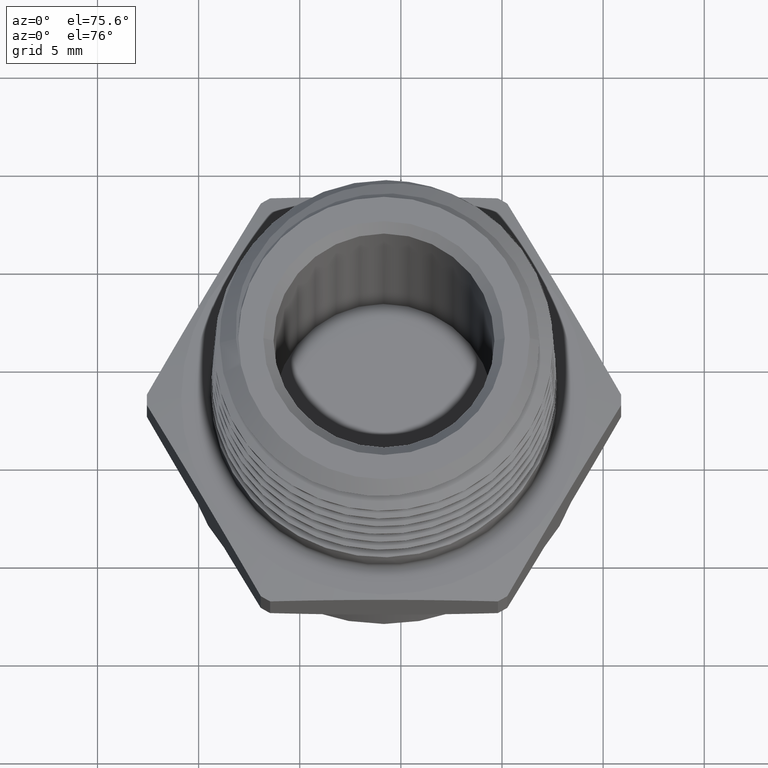
[diagram: clean part render]
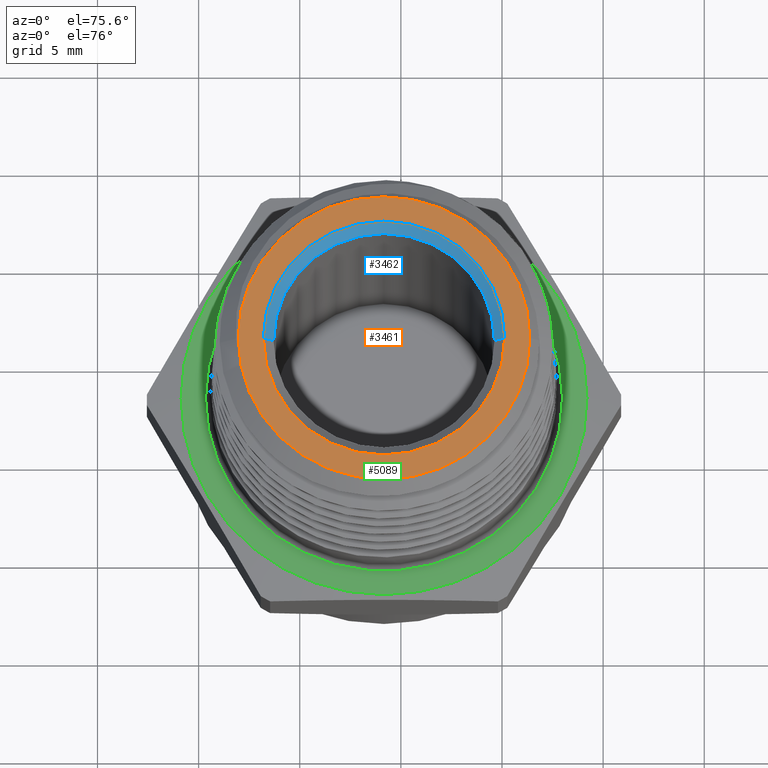
[diagram: same view with three faces highlighted in distinct colors, each labeled with its STEP entity id]
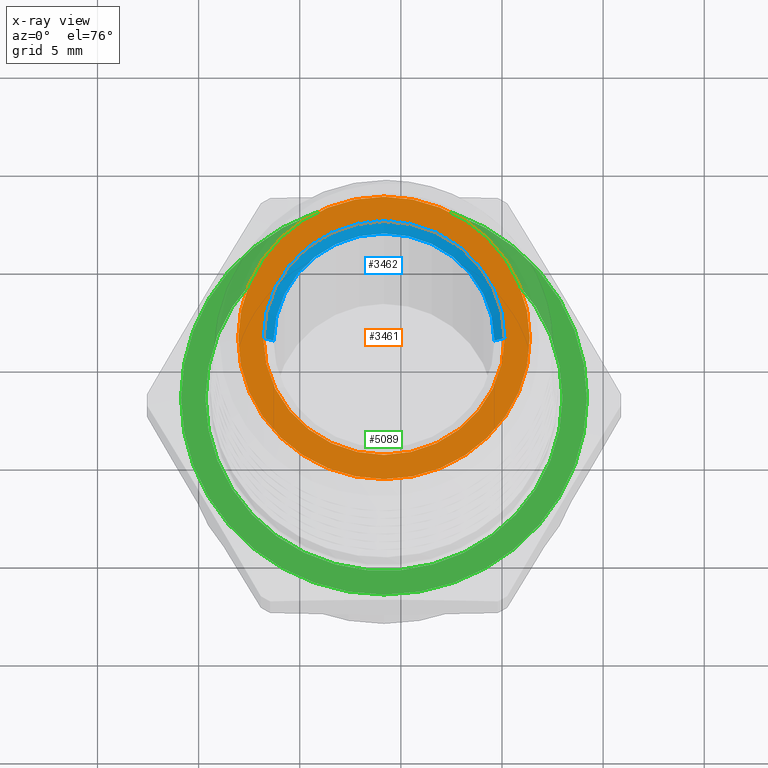
[diagram: x-ray of the same camera — body ghosted, the three highlighted faces saturated]
A machine part, auxiliary view with three faces highlighted in distinct colors.
The next image is the same camera in x-ray (body ghosted, the three faces saturated) — at least one of them is partly hidden behind the body in this view.
Their STEP definitions:

[orange] entity #3461 — the highlighted planar face has unit normal (0, 0, 1).
#38 = DIRECTION ( 'NONE',  ( 0.0000000000000000000, 0.0000000000000000000, 1.000000000000000000 ) ) ;
#39 = CARTESIAN_POINT ( 'NONE',  ( 0.0000000000000000000, 0.0000000000000000000, 0.5899999999999999700 ) ) ;
#41 = PLANE ( 'NONE',  #4016 ) ;
#43 = DIRECTION ( 'NONE',  ( 1.000000000000000000, 0.0000000000000000000, -0.0000000000000000000 ) ) ;
#59 = ORIENTED_EDGE ( 'NONE', *, *, #3976, .F. ) ;
#87 = EDGE_LOOP ( 'NONE', ( #137, #132 ) ) ;
#92 = EDGE_LOOP ( 'NONE', ( #131, #59 ) ) ;
#131 = ORIENTED_EDGE ( 'NONE', *, *, #3971, .F. ) ;
#132 = ORIENTED_EDGE ( 'NONE', *, *, #3926, .T. ) ;
#137 = ORIENTED_EDGE ( 'NONE', *, *, #4035, .T. ) ;
#1339 = CARTESIAN_POINT ( 'NONE',  ( 0.0000000000000000000, 0.0000000000000000000, 0.5899999999999999700 ) ) ;
#1340 = DIRECTION ( 'NONE',  ( -0.0000000000000000000, -0.0000000000000000000, -1.000000000000000000 ) ) ;
#1341 = DIRECTION ( 'NONE',  ( -1.000000000000000000, 0.0000000000000000000, 0.0000000000000000000 ) ) ;
#1393 = CARTESIAN_POINT ( 'NONE',  ( 0.0000000000000000000, 0.0000000000000000000, 0.5899999999999999700 ) ) ;
#1394 = DIRECTION ( 'NONE',  ( -0.0000000000000000000, -0.0000000000000000000, -1.000000000000000000 ) ) ;
#1395 = DIRECTION ( 'NONE',  ( -1.000000000000000000, 0.0000000000000000000, 0.0000000000000000000 ) ) ;
#1885 = CARTESIAN_POINT ( 'NONE',  ( -1.224646799147304700E-018, 0.0000000000000000000, 0.5899999999999999700 ) ) ;
#1886 = DIRECTION ( 'NONE',  ( 2.296162711943753400E-033, -0.0000000000000000000, -1.000000000000000000 ) ) ;
#1887 = DIRECTION ( 'NONE',  ( -1.000000000000000000, 0.0000000000000000000, 0.0000000000000000000 ) ) ;
#2847 = CARTESIAN_POINT ( 'NONE',  ( 0.2349999999999996000, 0.0000000000000000000, 0.5899999999999999700 ) ) ;
#2899 = CARTESIAN_POINT ( 'NONE',  ( 0.2838000000000001100, 3.697608685098229200E-017, 0.5899999999999999700 ) ) ;
#2900 = CARTESIAN_POINT ( 'NONE',  ( -0.2838000000000001100, 0.0000000000000000000, 0.5899999999999999700 ) ) ;
#2931 = CARTESIAN_POINT ( 'NONE',  ( -0.2349999999999996000, 2.877919977996274900E-017, 0.5899999999999999700 ) ) ;
#3461 = ADVANCED_FACE ( 'NONE', ( #4469, #4468 ), #41, .T. ) ;
#3517 = AXIS2_PLACEMENT_3D ( 'NONE', #4746, #4747, #4748 ) ;
#3539 = AXIS2_PLACEMENT_3D ( 'NONE', #1339, #1340, #1341 ) ;
#3540 = AXIS2_PLACEMENT_3D ( 'NONE', #1393, #1394, #1395 ) ;
#3546 = AXIS2_PLACEMENT_3D ( 'NONE', #1885, #1886, #1887 ) ;
#3926 = EDGE_CURVE ( 'NONE', #4441, #4402, #4529, .T. ) ;
#3971 = EDGE_CURVE ( 'NONE', #4410, #4409, #4584, .T. ) ;
#3976 = EDGE_CURVE ( 'NONE', #4409, #4410, #4589, .T. ) ;
#4016 = AXIS2_PLACEMENT_3D ( 'NONE', #39, #38, #43 ) ;
#4035 = EDGE_CURVE ( 'NONE', #4402, #4441, #4624, .T. ) ;
#4402 = VERTEX_POINT ( 'NONE', #2847 ) ;
#4409 = VERTEX_POINT ( 'NONE', #2899 ) ;
#4410 = VERTEX_POINT ( 'NONE', #2900 ) ;
#4441 = VERTEX_POINT ( 'NONE', #2931 ) ;
#4468 = FACE_OUTER_BOUND ( 'NONE', #92, .T. ) ;
#4469 = FACE_BOUND ( 'NONE', #87, .T. ) ;
#4529 = CIRCLE ( 'NONE', #3517, 0.2349999999999996000 ) ;
#4584 = CIRCLE ( 'NONE', #3539, 0.2838000000000001100 ) ;
#4589 = CIRCLE ( 'NONE', #3540, 0.2838000000000001100 ) ;
#4624 = CIRCLE ( 'NONE', #3546, 0.2349999999999996000 ) ;
#4746 = CARTESIAN_POINT ( 'NONE',  ( -1.224646799147304700E-018, 0.0000000000000000000, 0.5899999999999999700 ) ) ;
#4747 = DIRECTION ( 'NONE',  ( 2.296162711943753400E-033, -0.0000000000000000000, -1.000000000000000000 ) ) ;
#4748 = DIRECTION ( 'NONE',  ( -1.000000000000000000, 0.0000000000000000000, 0.0000000000000000000 ) ) ;

[blue] entity #3462 — the highlighted conical surface has half-angle 45 deg.
#40 = DIRECTION ( 'NONE',  ( -2.296162711943753400E-033, 0.0000000000000000000, 1.000000000000000000 ) ) ;
#42 = DIRECTION ( 'NONE',  ( 1.000000000000000000, 0.0000000000000000000, 0.0000000000000000000 ) ) ;
#44 = CARTESIAN_POINT ( 'NONE',  ( -1.224646799147304700E-018, 0.0000000000000000000, 0.5700000000000000600 ) ) ;
#58 = ORIENTED_EDGE ( 'NONE', *, *, #4032, .F. ) ;
#90 = EDGE_LOOP ( 'NONE', ( #58, #5197, #5271, #5192 ) ) ;
#1869 = DIRECTION ( 'NONE',  ( -0.7071067811865431300, 8.659560562354879900E-017, 0.7071067811865516800 ) ) ;
#1872 = CARTESIAN_POINT ( 'NONE',  ( -0.2149999999999999100, 2.632990618166808500E-017, 0.5700000000000000600 ) ) ;
#1878 = CARTESIAN_POINT ( 'NONE',  ( 0.2149999999999999100, 0.0000000000000000000, 0.5700000000000000600 ) ) ;
#1879 = DIRECTION ( 'NONE',  ( 0.7071067811865431300, 0.0000000000000000000, 0.7071067811865516800 ) ) ;
#2847 = CARTESIAN_POINT ( 'NONE',  ( 0.2349999999999996000, 0.0000000000000000000, 0.5899999999999999700 ) ) ;
#2895 = CARTESIAN_POINT ( 'NONE',  ( 0.2149999999999999100, 0.0000000000000000000, 0.5700000000000000600 ) ) ;
#2931 = CARTESIAN_POINT ( 'NONE',  ( -0.2349999999999996000, 2.877919977996274900E-017, 0.5899999999999999700 ) ) ;
#2932 = CARTESIAN_POINT ( 'NONE',  ( -0.2149999999999999100, 2.755455298081542000E-017, 0.5700000000000000600 ) ) ;
#3462 = ADVANCED_FACE ( 'NONE', ( #4470 ), #4479, .F. ) ;
#3517 = AXIS2_PLACEMENT_3D ( 'NONE', #4746, #4747, #4748 ) ;
#3518 = AXIS2_PLACEMENT_3D ( 'NONE', #4751, #4752, #4753 ) ;
#3926 = EDGE_CURVE ( 'NONE', #4441, #4402, #4529, .T. ) ;
#3927 = EDGE_CURVE ( 'NONE', #4442, #4404, #4533, .T. ) ;
#4015 = AXIS2_PLACEMENT_3D ( 'NONE', #44, #40, #42 ) ;
#4032 = EDGE_CURVE ( 'NONE', #4442, #4441, #4616, .T. ) ;
#4036 = EDGE_CURVE ( 'NONE', #4404, #4402, #4625, .T. ) ;
#4402 = VERTEX_POINT ( 'NONE', #2847 ) ;
#4404 = VERTEX_POINT ( 'NONE', #2895 ) ;
#4441 = VERTEX_POINT ( 'NONE', #2931 ) ;
#4442 = VERTEX_POINT ( 'NONE', #2932 ) ;
#4470 = FACE_OUTER_BOUND ( 'NONE', #90, .T. ) ;
#4479 = CONICAL_SURFACE ( 'NONE', #4015, 0.2149999999999999100, 0.7853981633974422800 ) ;
#4529 = CIRCLE ( 'NONE', #3517, 0.2349999999999996000 ) ;
#4533 = CIRCLE ( 'NONE', #3518, 0.2149999999999999100 ) ;
#4616 = LINE ( 'NONE', #1872, #4621 ) ;
#4621 = VECTOR ( 'NONE', #1869, 39.37007874015748900 ) ;
#4625 = LINE ( 'NONE', #1878, #4627 ) ;
#4627 = VECTOR ( 'NONE', #1879, 39.37007874015748900 ) ;
#4746 = CARTESIAN_POINT ( 'NONE',  ( -1.224646799147304700E-018, 0.0000000000000000000, 0.5899999999999999700 ) ) ;
#4747 = DIRECTION ( 'NONE',  ( 2.296162711943753400E-033, -0.0000000000000000000, -1.000000000000000000 ) ) ;
#4748 = DIRECTION ( 'NONE',  ( -1.000000000000000000, 0.0000000000000000000, 0.0000000000000000000 ) ) ;
#4751 = CARTESIAN_POINT ( 'NONE',  ( -1.224646799147304700E-018, 0.0000000000000000000, 0.5700000000000000600 ) ) ;
#4752 = DIRECTION ( 'NONE',  ( 2.296162711943753400E-033, -0.0000000000000000000, -1.000000000000000000 ) ) ;
#4753 = DIRECTION ( 'NONE',  ( -1.000000000000000000, 0.0000000000000000000, 0.0000000000000000000 ) ) ;
#5192 = ORIENTED_EDGE ( 'NONE', *, *, #3926, .F. ) ;
#5197 = ORIENTED_EDGE ( 'NONE', *, *, #3927, .T. ) ;
#5271 = ORIENTED_EDGE ( 'NONE', *, *, #4036, .T. ) ;

[green] entity #5089 — the highlighted planar face has unit normal (0, 0, 1).
#67 = EDGE_LOOP ( 'NONE', ( #4318, #4319 ) ) ;
#129 = EDGE_LOOP ( 'NONE', ( #4320, #4321 ) ) ;
#620 = CARTESIAN_POINT ( 'NONE',  ( 1.469576158976820900E-017, 0.0000000000000000000, 0.1199999999999999500 ) ) ;
#621 = DIRECTION ( 'NONE',  ( -1.224646799147351200E-016, -0.0000000000000000000, -1.000000000000000000 ) ) ;
#622 = DIRECTION ( 'NONE',  ( -1.000000000000000000, 0.0000000000000000000, 1.296763288131770500E-016 ) ) ;
#1099 = AXIS2_PLACEMENT_3D ( 'NONE', #2996, #2995, #3000 ) ;
#1898 = CARTESIAN_POINT ( 'NONE',  ( 0.0000000000000000000, 0.0000000000000000000, 0.1200000000000000000 ) ) ;
#1899 = DIRECTION ( 'NONE',  ( 0.0000000000000000000, -0.0000000000000000000, -1.000000000000000000 ) ) ;
#1900 = DIRECTION ( 'NONE',  ( 1.000000000000000000, 0.0000000000000000000, 0.0000000000000000000 ) ) ;
#2826 = CARTESIAN_POINT ( 'NONE',  ( 1.469576158976820900E-017, 0.0000000000000000000, 0.1199999999999999500 ) ) ;
#2827 = DIRECTION ( 'NONE',  ( -1.224646799147351200E-016, -0.0000000000000000000, -1.000000000000000000 ) ) ;
#2828 = DIRECTION ( 'NONE',  ( -1.000000000000000000, 0.0000000000000000000, 1.296763288131770500E-016 ) ) ;
#2831 = CARTESIAN_POINT ( 'NONE',  ( 0.0000000000000000000, 0.0000000000000000000, 0.1200000000000000000 ) ) ;
#2832 = DIRECTION ( 'NONE',  ( 0.0000000000000000000, -0.0000000000000000000, -1.000000000000000000 ) ) ;
#2833 = DIRECTION ( 'NONE',  ( 1.000000000000000000, 0.0000000000000000000, 0.0000000000000000000 ) ) ;
#2925 = CARTESIAN_POINT ( 'NONE',  ( 0.3950000000000000200, 4.837354856632045600E-017, 0.1199999999999999000 ) ) ;
#2939 = CARTESIAN_POINT ( 'NONE',  ( 0.3475000000000000300, 0.0000000000000000000, 0.1199999999999999800 ) ) ;
#2944 = CARTESIAN_POINT ( 'NONE',  ( -0.3475000000000000300, 4.255647627037053400E-017, 0.1199999999999999800 ) ) ;
#2946 = CARTESIAN_POINT ( 'NONE',  ( -0.3950000000000000200, 0.0000000000000000000, 0.1200000000000000000 ) ) ;
#2995 = DIRECTION ( 'NONE',  ( -0.0000000000000000000, 0.0000000000000000000, 1.000000000000000000 ) ) ;
#2996 = CARTESIAN_POINT ( 'NONE',  ( -0.2338268590217981200, -0.4050000000000001400, 0.1200000000000000000 ) ) ;
#2998 = PLANE ( 'NONE',  #1099 ) ;
#3000 = DIRECTION ( 'NONE',  ( 1.000000000000000000, 0.0000000000000000000, 0.0000000000000000000 ) ) ;
#3532 = AXIS2_PLACEMENT_3D ( 'NONE', #620, #621, #622 ) ;
#3550 = AXIS2_PLACEMENT_3D ( 'NONE', #1898, #1899, #1900 ) ;
#3554 = AXIS2_PLACEMENT_3D ( 'NONE', #2826, #2827, #2828 ) ;
#3555 = AXIS2_PLACEMENT_3D ( 'NONE', #2831, #2832, #2833 ) ;
#3957 = EDGE_CURVE ( 'NONE', #4456, #4435, #4568, .T. ) ;
#4041 = EDGE_CURVE ( 'NONE', #4449, #4454, #4632, .T. ) ;
#4075 = EDGE_CURVE ( 'NONE', #4435, #4456, #4649, .T. ) ;
#4076 = EDGE_CURVE ( 'NONE', #4454, #4449, #4652, .T. ) ;
#4318 = ORIENTED_EDGE ( 'NONE', *, *, #3957, .F. ) ;
#4319 = ORIENTED_EDGE ( 'NONE', *, *, #4075, .F. ) ;
#4320 = ORIENTED_EDGE ( 'NONE', *, *, #4041, .T. ) ;
#4321 = ORIENTED_EDGE ( 'NONE', *, *, #4076, .T. ) ;
#4435 = VERTEX_POINT ( 'NONE', #2925 ) ;
#4449 = VERTEX_POINT ( 'NONE', #2939 ) ;
#4454 = VERTEX_POINT ( 'NONE', #2944 ) ;
#4456 = VERTEX_POINT ( 'NONE', #2946 ) ;
#4568 = CIRCLE ( 'NONE', #3532, 0.3950000000000000200 ) ;
#4632 = CIRCLE ( 'NONE', #3550, 0.3475000000000000300 ) ;
#4649 = CIRCLE ( 'NONE', #3554, 0.3950000000000000200 ) ;
#4652 = CIRCLE ( 'NONE', #3555, 0.3475000000000000300 ) ;
#4673 = FACE_OUTER_BOUND ( 'NONE', #67, .T. ) ;
#4674 = FACE_BOUND ( 'NONE', #129, .T. ) ;
#5089 = ADVANCED_FACE ( 'NONE', ( #4673, #4674 ), #2998, .T. ) ;